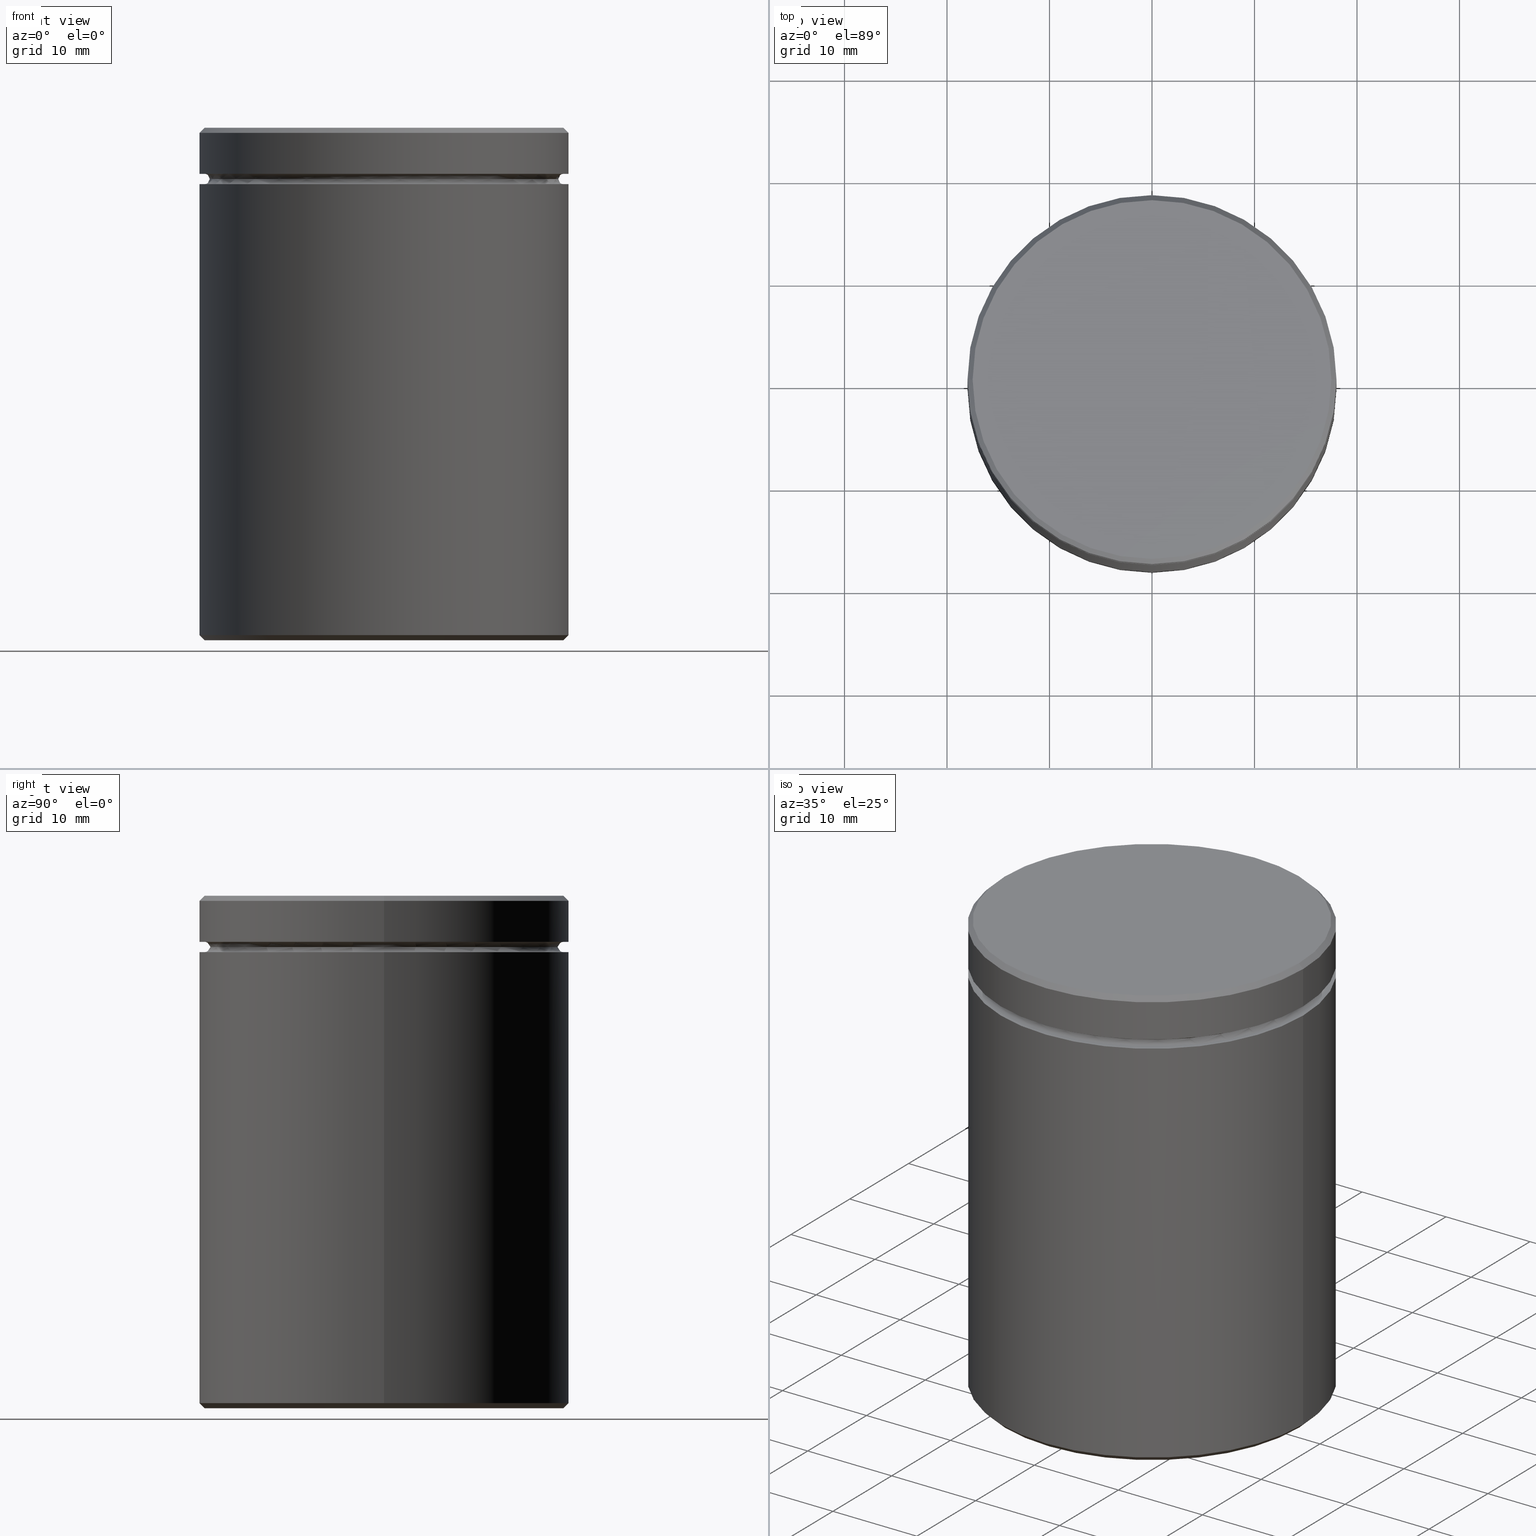
[diagram: canonical four-view strip — front | top / right | iso, engineering-drawing reading convention]
A machine part, canonical four-view strip (front | top / right | iso — engineering-drawing reading convention). The complete STEP part file that produces these views, byte-faithful:
ISO-10303-21;
HEADER;
FILE_DESCRIPTION (( 'STEP AP203' ),
    '1' );
FILE_NAME ('ba3d.STEP',
    '2024-01-02T17:57:16',
    ( '' ),
    ( '' ),
    'SwSTEP 2.0',
    'SolidWorks 2019',
    '' );
FILE_SCHEMA (( 'CONFIG_CONTROL_DESIGN' ));
ENDSEC;

DATA;
#1 = DIRECTION ( 'NONE',  ( -1.000000000000000000, 0.000000000000000000, -0.000000000000000000 ) ) ;
#2 = EDGE_CURVE ( 'NONE', #318, #506, #389, .T. ) ;
#3 = EDGE_LOOP ( 'NONE', ( #60, #65, #198, #148 ) ) ;
#4 = CARTESIAN_POINT ( 'NONE',  ( 0.000000000000000000, 0.000000000000000000, -5.500000000000000000 ) ) ;
#5 = DIRECTION ( 'NONE',  ( -0.000000000000000000, -0.000000000000000000, -1.000000000000000000 ) ) ;
#6 = EDGE_CURVE ( 'NONE', #547, #128, #319, .T. ) ;
#7 =( LENGTH_UNIT ( ) NAMED_UNIT ( * ) SI_UNIT ( .MILLI., .METRE. ) );
#8 = AXIS2_PLACEMENT_3D ( 'NONE', #293, #72, #218 ) ;
#9 = AXIS2_PLACEMENT_3D ( 'NONE', #413, #172, #55 ) ;
#10 = ORIENTED_EDGE ( 'NONE', *, *, #2, .F. ) ;
#11 = CARTESIAN_POINT ( 'NONE',  ( 0.000000000000000000, 0.000000000000000000, -5.500000000000000000 ) ) ;
#12 = ORIENTED_EDGE ( 'NONE', *, *, #212, .F. ) ;
#13 = DIRECTION ( 'NONE',  ( 1.000000000000000000, 0.000000000000000000, 0.000000000000000000 ) ) ;
#14 = APPROVAL ( #289, 'NEUR�EN�' ) ;
#15 = UNCERTAINTY_MEASURE_WITH_UNIT (LENGTH_MEASURE( 1.000000000000000082E-05 ), #7, 'distance_accuracy_value', 'NONE');
#16 = ORIENTED_EDGE ( 'NONE', *, *, #222, .T. ) ;
#17 = APPROVAL_DATE_TIME ( #61, #14 ) ;
#18 = AXIS2_PLACEMENT_3D ( 'NONE', #162, #302, #343 ) ;
#19 = AXIS2_PLACEMENT_3D ( 'NONE', #559, #161, #77 ) ;
#20 = ORIENTED_EDGE ( 'NONE', *, *, #22, .T. ) ;
#21 = ORIENTED_EDGE ( 'NONE', *, *, #258, .T. ) ;
#22 = EDGE_CURVE ( 'NONE', #57, #405, #340, .T. ) ;
#23 = APPLICATION_CONTEXT ( 'configuration controlled 3d designs of mechanical parts and assemblies' ) ;
#24 = SECURITY_CLASSIFICATION_LEVEL ( 'unclassified' ) ;
#25 = VERTEX_POINT ( 'NONE', #35 ) ;
#26 = CIRCLE ( 'NONE', #299, 18.00000000000000000 ) ;
#27 = AXIS2_PLACEMENT_3D ( 'NONE', #462, #149, #186 ) ;
#28 = ORIENTED_EDGE ( 'NONE', *, *, #6, .T. ) ;
#29 = CARTESIAN_POINT ( 'NONE',  ( 0.000000000000000000, 0.000000000000000000, -5.500000000000000000 ) ) ;
#30 = CARTESIAN_POINT ( 'NONE',  ( 12.50000000000000000, 1.530808498934191521E-15, -18.00000000000000355 ) ) ;
#31 = DIRECTION ( 'NONE',  ( 0.000000000000000000, 0.000000000000000000, -1.000000000000000000 ) ) ;
#32 = DIRECTION ( 'NONE',  ( -1.000000000000000000, 0.000000000000000000, 0.000000000000000000 ) ) ;
#33 = DIRECTION ( 'NONE',  ( -0.000000000000000000, -0.000000000000000000, 1.000000000000000000 ) ) ;
#34 = CC_DESIGN_SECURITY_CLASSIFICATION ( #264, ( #557 ) ) ;
#35 = CARTESIAN_POINT ( 'NONE',  ( 17.49999999999999645, 2.143131898507867854E-15, -4.500000000000000888 ) ) ;
#36 = ADVANCED_FACE ( 'NONE', ( #481 ), #408, .T. ) ;
#37 = CARTESIAN_POINT ( 'NONE',  ( 18.00000000000000000, 0.000000000000000000, -5.500000000000000000 ) ) ;
#38 = DIRECTION ( 'NONE',  ( -0.000000000000000000, -0.000000000000000000, 1.000000000000000000 ) ) ;
#39 = CARTESIAN_POINT ( 'NONE',  ( -18.00000000000000000, 2.204364238465235428E-15, 0.000000000000000000 ) ) ;
#40 = FACE_OUTER_BOUND ( 'NONE', #239, .T. ) ;
#41 = APPROVAL_PERSON_ORGANIZATION ( #138, #373, #470 ) ;
#42 = CARTESIAN_POINT ( 'NONE',  ( -17.50000000000000000, 2.173748068486551641E-15, -50.00000000000000000 ) ) ;
#43 = DIRECTION ( 'NONE',  ( 1.000000000000000000, 0.000000000000000000, 0.000000000000000000 ) ) ;
#44 = EDGE_LOOP ( 'NONE', ( #219, #242 ) ) ;
#45 = PLANE ( 'NONE',  #380 ) ;
#46 = CARTESIAN_POINT ( 'NONE',  ( -12.50000000000000000, 0.000000000000000000, -18.00000000000000355 ) ) ;
#47 = VERTEX_POINT ( 'NONE', #203 ) ;
#48 = DIRECTION ( 'NONE',  ( -0.000000000000000000, -0.000000000000000000, 1.000000000000000000 ) ) ;
#49 = EDGE_LOOP ( 'NONE', ( #381, #175, #227, #269 ) ) ;
#50 = DIRECTION ( 'NONE',  ( 1.000000000000000000, 0.000000000000000000, 0.000000000000000000 ) ) ;
#51 = VECTOR ( 'NONE', #5, 1000.000000000000000 ) ;
#52 = VECTOR ( 'NONE', #494, 1000.000000000000114 ) ;
#53 = AXIS2_PLACEMENT_3D ( 'NONE', #336, #63, #69 ) ;
#54 = CC_DESIGN_PERSON_AND_ORGANIZATION_ASSIGNMENT ( #334, #510, ( #442 ) ) ;
#55 = DIRECTION ( 'NONE',  ( 1.000000000000000000, 0.000000000000000000, 0.000000000000000000 ) ) ;
#56 = ORIENTED_EDGE ( 'NONE', *, *, #195, .T. ) ;
#57 = VERTEX_POINT ( 'NONE', #260 ) ;
#58 = MECHANICAL_CONTEXT ( 'NONE', #325, 'mechanical' ) ;
#59 = AXIS2_PLACEMENT_3D ( 'NONE', #533, #221, #489 ) ;
#60 = ORIENTED_EDGE ( 'NONE', *, *, #280, .F. ) ;
#61 = DATE_AND_TIME ( #502, #474 ) ;
#62 = ADVANCED_FACE ( 'NONE', ( #443, #257 ), #563, .T. ) ;
#63 = DIRECTION ( 'NONE',  ( 0.000000000000000000, 0.000000000000000000, -1.000000000000000000 ) ) ;
#64 = APPROVAL_STATUS ( 'not_yet_approved' ) ;
#65 = ORIENTED_EDGE ( 'NONE', *, *, #183, .T. ) ;
#66 = COORDINATED_UNIVERSAL_TIME_OFFSET ( 1, 0, .AHEAD. ) ;
#67 = AXIS2_PLACEMENT_3D ( 'NONE', #74, #476, #434 ) ;
#68 = AXIS2_PLACEMENT_3D ( 'NONE', #395, #566, #71 ) ;
#69 = DIRECTION ( 'NONE',  ( -1.000000000000000000, 0.000000000000000000, 0.000000000000000000 ) ) ;
#70 = EDGE_CURVE ( 'NONE', #503, #425, #178, .T. ) ;
#71 = DIRECTION ( 'NONE',  ( 0.000000000000000000, 0.000000000000000000, -1.000000000000000000 ) ) ;
#72 = DIRECTION ( 'NONE',  ( 0.000000000000000000, -0.000000000000000000, 1.000000000000000000 ) ) ;
#73 = DIRECTION ( 'NONE',  ( -1.000000000000000000, 0.000000000000000000, 0.000000000000000000 ) ) ;
#74 = CARTESIAN_POINT ( 'NONE',  ( 0.000000000000000000, 0.000000000000000000, -4.999999999999999112 ) ) ;
#75 = DIRECTION ( 'NONE',  ( 1.000000000000000000, 0.000000000000000000, 0.000000000000000000 ) ) ;
#76 = ADVANCED_FACE ( 'NONE', ( #386 ), #341, .T. ) ;
#77 = DIRECTION ( 'NONE',  ( -1.000000000000000000, 0.000000000000000000, 0.000000000000000000 ) ) ;
#78 = AXIS2_PLACEMENT_3D ( 'NONE', #120, #158, #441 ) ;
#79 = CIRCLE ( 'NONE', #146, 17.49999999999999645 ) ;
#80 = DIRECTION ( 'NONE',  ( -0.000000000000000000, -0.000000000000000000, 1.000000000000000000 ) ) ;
#81 = DIRECTION ( 'NONE',  ( -1.000000000000000000, 0.000000000000000000, 0.000000000000000000 ) ) ;
#82 = CYLINDRICAL_SURFACE ( 'NONE', #456, 12.50000000000000000 ) ;
#83 = DIRECTION ( 'NONE',  ( -1.000000000000000000, 0.000000000000000000, -0.000000000000000000 ) ) ;
#84 = DIRECTION ( 'NONE',  ( 1.000000000000000000, 0.000000000000000000, 0.000000000000000000 ) ) ;
#85 = CYLINDRICAL_SURFACE ( 'NONE', #564, 18.00000000000000000 ) ;
#86 = CIRCLE ( 'NONE', #482, 17.50000000000000000 ) ;
#87 = CARTESIAN_POINT ( 'NONE',  ( 18.00000000000000000, 0.000000000000000000, -49.50000000000000000 ) ) ;
#88 = FACE_OUTER_BOUND ( 'NONE', #529, .T. ) ;
#89 = ORIENTED_EDGE ( 'NONE', *, *, #515, .F. ) ;
#90 = DIRECTION ( 'NONE',  ( 0.000000000000000000, -0.000000000000000000, 1.000000000000000000 ) ) ;
#91 = DIRECTION ( 'NONE',  ( 0.000000000000000000, 0.000000000000000000, -1.000000000000000000 ) ) ;
#92 = ORIENTED_EDGE ( 'NONE', *, *, #453, .T. ) ;
#93 = ADVANCED_FACE ( 'NONE', ( #40 ), #147, .F. ) ;
#94 = VERTEX_POINT ( 'NONE', #517 ) ;
#95 = LINE ( 'NONE', #527, #52 ) ;
#96 = AXIS2_PLACEMENT_3D ( 'NONE', #555, #388, #75 ) ;
#97 = COORDINATED_UNIVERSAL_TIME_OFFSET ( 1, 0, .AHEAD. ) ;
#98 = DIRECTION ( 'NONE',  ( 0.000000000000000000, 0.000000000000000000, -1.000000000000000000 ) ) ;
#99 = PRODUCT_DEFINITION ( 'NEZN�M�', '', #557, #140 ) ;
#100 = ORIENTED_EDGE ( 'NONE', *, *, #410, .F. ) ;
#101 = AXIS2_PLACEMENT_3D ( 'NONE', #159, #479, #399 ) ;
#102 = EDGE_LOOP ( 'NONE', ( #92, #384, #179, #100 ) ) ;
#103 =( NAMED_UNIT ( * ) SI_UNIT ( $, .STERADIAN. ) SOLID_ANGLE_UNIT ( ) );
#104 = ORIENTED_EDGE ( 'NONE', *, *, #222, .F. ) ;
#105 = DATE_TIME_ROLE ( 'creation_date' ) ;
#106 = ORIENTED_EDGE ( 'NONE', *, *, #70, .F. ) ;
#107 = EDGE_CURVE ( 'NONE', #47, #503, #392, .T. ) ;
#108 = VECTOR ( 'NONE', #561, 1000.000000000000000 ) ;
#109 = CARTESIAN_POINT ( 'NONE',  ( 0.000000000000000000, 0.000000000000000000, 0.000000000000000000 ) ) ;
#110 = CARTESIAN_POINT ( 'NONE',  ( 0.000000000000000000, 0.000000000000000000, -5.000000000000000888 ) ) ;
#111 = DIRECTION ( 'NONE',  ( 0.000000000000000000, 0.000000000000000000, -1.000000000000000000 ) ) ;
#112 = DIRECTION ( 'NONE',  ( 1.224646799147353207E-16, 1.000000000000000000, 0.000000000000000000 ) ) ;
#113 = EDGE_CURVE ( 'NONE', #290, #265, #332, .T. ) ;
#114 = FACE_OUTER_BOUND ( 'NONE', #335, .T. ) ;
#115 = FACE_OUTER_BOUND ( 'NONE', #461, .T. ) ;
#116 = EDGE_CURVE ( 'NONE', #554, #310, #127, .T. ) ;
#117 = CARTESIAN_POINT ( 'NONE',  ( 18.00000000000000000, 0.000000000000000000, 0.000000000000000000 ) ) ;
#118 = TOROIDAL_SURFACE ( 'NONE', #78, 17.49999999999999645, 0.5000000000000000000 ) ;
#119 = CLOSED_SHELL ( 'NONE', ( #414, #93, #473, #76, #306, #300, #177, #62, #549, #133, #188, #180, #202, #383, #421, #36, #417, #543, #267 ) ) ;
#120 = CARTESIAN_POINT ( 'NONE',  ( 0.000000000000000000, 0.000000000000000000, -5.000000000000000888 ) ) ;
#121 = FACE_OUTER_BOUND ( 'NONE', #313, .T. ) ;
#122 = DIRECTION ( 'NONE',  ( -1.000000000000000000, 0.000000000000000000, 0.000000000000000000 ) ) ;
#123 = CARTESIAN_POINT ( 'NONE',  ( 0.000000000000000000, 18.00000000000000000, -4.500000000000000888 ) ) ;
#124 = CC_DESIGN_PERSON_AND_ORGANIZATION_ASSIGNMENT ( #194, #374, ( #557 ) ) ;
#125 = CARTESIAN_POINT ( 'NONE',  ( 0.000000000000000000, 0.000000000000000000, 0.000000000000000000 ) ) ;
#126 = DIRECTION ( 'NONE',  ( -1.000000000000000000, -1.224646799147349509E-16, 0.000000000000000000 ) ) ;
#127 = CIRCLE ( 'NONE', #67, 16.99999999999999645 ) ;
#128 = VERTEX_POINT ( 'NONE', #486 ) ;
#129 = CARTESIAN_POINT ( 'NONE',  ( 18.00000000000000000, 0.000000000000000000, -0.5000000000000108802 ) ) ;
#130 = CARTESIAN_POINT ( 'NONE',  ( 0.000000000000000000, 0.000000000000000000, -50.00000000000000000 ) ) ;
#131 = ORIENTED_EDGE ( 'NONE', *, *, #258, .F. ) ;
#132 = CARTESIAN_POINT ( 'NONE',  ( -17.49999999999999645, 0.000000000000000000, -4.500000000000000888 ) ) ;
#133 = ADVANCED_FACE ( 'NONE', ( #342 ), #295, .T. ) ;
#134 = ORIENTED_EDGE ( 'NONE', *, *, #271, .T. ) ;
#135 = CARTESIAN_POINT ( 'NONE',  ( 16.99999999999999645, 0.000000000000000000, -4.999999999999999112 ) ) ;
#136 = EDGE_LOOP ( 'NONE', ( #10, #134, #231, #279 ) ) ;
#137 = CIRCLE ( 'NONE', #396, 17.49999999999999645 ) ;
#138 = PERSON_AND_ORGANIZATION ( #536, #350 ) ;
#139 = AXIS2_PLACEMENT_3D ( 'NONE', #123, #263, #1 ) ;
#140 = DESIGN_CONTEXT ( 'detailed design', #23, 'design' ) ;
#141 = ORIENTED_EDGE ( 'NONE', *, *, #113, .T. ) ;
#142 = PERSON_AND_ORGANIZATION_ROLE ( 'classification_officer' ) ;
#143 = ORIENTED_EDGE ( 'NONE', *, *, #376, .T. ) ;
#144 = EDGE_LOOP ( 'NONE', ( #184, #471, #247, #193 ) ) ;
#145 = PERSON_AND_ORGANIZATION_ROLE ( 'creator' ) ;
#146 = AXIS2_PLACEMENT_3D ( 'NONE', #444, #497, #169 ) ;
#147 = TOROIDAL_SURFACE ( 'NONE', #101, 17.49999999999999645, 0.5000000000000000000 ) ;
#148 = ORIENTED_EDGE ( 'NONE', *, *, #445, .T. ) ;
#149 = DIRECTION ( 'NONE',  ( 0.000000000000000000, 0.000000000000000000, 1.000000000000000000 ) ) ;
#150 = EDGE_CURVE ( 'NONE', #57, #265, #207, .T. ) ;
#151 = ORIENTED_EDGE ( 'NONE', *, *, #376, .F. ) ;
#152 = EDGE_CURVE ( 'NONE', #554, #547, #472, .T. ) ;
#153 = ORIENTED_EDGE ( 'NONE', *, *, #365, .F. ) ;
#154 = CARTESIAN_POINT ( 'NONE',  ( 18.00000000000000000, 0.000000000000000000, -4.500000000000000888 ) ) ;
#155 = AXIS2_PLACEMENT_3D ( 'NONE', #160, #296, #73 ) ;
#156 = CARTESIAN_POINT ( 'NONE',  ( 0.000000000000000000, 0.000000000000000000, -5.500000000000000000 ) ) ;
#157 = CC_DESIGN_DATE_AND_TIME_ASSIGNMENT ( #323, #105, ( #99 ) ) ;
#158 = DIRECTION ( 'NONE',  ( 0.000000000000000000, 0.000000000000000000, -1.000000000000000000 ) ) ;
#159 = CARTESIAN_POINT ( 'NONE',  ( 0.000000000000000000, 0.000000000000000000, -4.999999999999999112 ) ) ;
#160 = CARTESIAN_POINT ( 'NONE',  ( 0.000000000000000000, 0.000000000000000000, -18.00000000000000355 ) ) ;
#161 = DIRECTION ( 'NONE',  ( -0.000000000000000000, -0.000000000000000000, 1.000000000000000000 ) ) ;
#162 = CARTESIAN_POINT ( 'NONE',  ( 0.000000000000000000, 0.000000000000000000, 0.000000000000000000 ) ) ;
#163 = DIRECTION ( 'NONE',  ( 1.000000000000000000, 0.000000000000000000, 0.000000000000000000 ) ) ;
#164 = CIRCLE ( 'NONE', #245, 17.50000000000000000 ) ;
#165 = APPROVAL_PERSON_ORGANIZATION ( #321, #249, #326 ) ;
#166 = FACE_OUTER_BOUND ( 'NONE', #544, .T. ) ;
#167 = EDGE_CURVE ( 'NONE', #509, #94, #164, .T. ) ;
#168 = DIRECTION ( 'NONE',  ( 0.000000000000000000, 0.000000000000000000, -1.000000000000000000 ) ) ;
#169 = DIRECTION ( 'NONE',  ( -1.000000000000000000, 0.000000000000000000, 0.000000000000000000 ) ) ;
#170 = DIRECTION ( 'NONE',  ( 1.000000000000000000, 0.000000000000000000, 0.000000000000000000 ) ) ;
#171 = VERTEX_POINT ( 'NONE', #512 ) ;
#172 = DIRECTION ( 'NONE',  ( -0.000000000000000000, -0.000000000000000000, 1.000000000000000000 ) ) ;
#173 = CARTESIAN_POINT ( 'NONE',  ( 0.000000000000000000, 0.000000000000000000, -4.500000000000000888 ) ) ;
#174 = AXIS2_PLACEMENT_3D ( 'NONE', #156, #524, #301 ) ;
#175 = ORIENTED_EDGE ( 'NONE', *, *, #116, .F. ) ;
#176 = CIRCLE ( 'NONE', #428, 18.00000000000000000 ) ;
#177 = ADVANCED_FACE ( 'NONE', ( #114 ), #521, .T. ) ;
#178 = CIRCLE ( 'NONE', #349, 18.00000000000000000 ) ;
#179 = ORIENTED_EDGE ( 'NONE', *, *, #240, .F. ) ;
#180 = ADVANCED_FACE ( 'NONE', ( #394, #121 ), #303, .T. ) ;
#181 = ORIENTED_EDGE ( 'NONE', *, *, #469, .T. ) ;
#182 = CARTESIAN_POINT ( 'NONE',  ( -18.00000000000000000, 2.204364238465235428E-15, -0.5000000000000108802 ) ) ;
#183 = EDGE_CURVE ( 'NONE', #171, #322, #26, .T. ) ;
#184 = ORIENTED_EDGE ( 'NONE', *, *, #271, .F. ) ;
#185 = CIRCLE ( 'NONE', #513, 12.50000000000000000 ) ;
#186 = DIRECTION ( 'NONE',  ( 1.000000000000000000, 0.000000000000000000, 0.000000000000000000 ) ) ;
#187 = CIRCLE ( 'NONE', #9, 18.00000000000000000 ) ;
#188 = ADVANCED_FACE ( 'NONE', ( #272, #401 ), #526, .T. ) ;
#189 = ORIENTED_EDGE ( 'NONE', *, *, #331, .F. ) ;
#190 = DATE_TIME_ROLE ( 'classification_date' ) ;
#191 = ORIENTED_EDGE ( 'NONE', *, *, #183, .F. ) ;
#192 = PERSON_AND_ORGANIZATION ( #536, #350 ) ;
#193 = ORIENTED_EDGE ( 'NONE', *, *, #243, .T. ) ;
#194 = PERSON_AND_ORGANIZATION ( #536, #350 ) ;
#195 = EDGE_CURVE ( 'NONE', #506, #318, #254, .T. ) ;
#196 = AXIS2_PLACEMENT_3D ( 'NONE', #556, #484, #255 ) ;
#197 = AXIS2_PLACEMENT_3D ( 'NONE', #4, #224, #540 ) ;
#198 = ORIENTED_EDGE ( 'NONE', *, *, #365, .T. ) ;
#199 = COORDINATED_UNIVERSAL_TIME_OFFSET ( 1, 0, .AHEAD. ) ;
#200 = ORIENTED_EDGE ( 'NONE', *, *, #107, .F. ) ;
#201 = FACE_OUTER_BOUND ( 'NONE', #102, .T. ) ;
#202 = ADVANCED_FACE ( 'NONE', ( #88 ), #85, .T. ) ;
#203 = CARTESIAN_POINT ( 'NONE',  ( -17.50000000000000000, 0.000000000000000000, 0.000000000000000000 ) ) ;
#204 = FACE_OUTER_BOUND ( 'NONE', #459, .T. ) ;
#205 = CIRCLE ( 'NONE', #328, 12.50000000000000000 ) ;
#206 = CONICAL_SURFACE ( 'NONE', #228, 18.00000000000000000, 0.7853981633974447263 ) ;
#207 = LINE ( 'NONE', #117, #108 ) ;
#208 = CARTESIAN_POINT ( 'NONE',  ( 12.50000000000000000, 1.530808498934191521E-15, -18.00000000000000355 ) ) ;
#209 = CARTESIAN_POINT ( 'NONE',  ( 18.00000000000000000, 0.000000000000000000, 0.000000000000000000 ) ) ;
#210 = DIRECTION ( 'NONE',  ( 1.000000000000000000, 0.000000000000000000, 0.000000000000000000 ) ) ;
#211 = DIRECTION ( 'NONE',  ( -1.000000000000000000, 1.224646799147349509E-16, 0.000000000000000000 ) ) ;
#212 = EDGE_CURVE ( 'NONE', #554, #25, #522, .T. ) ;
#213 = AXIS2_PLACEMENT_3D ( 'NONE', #109, #38, #210 ) ;
#214 = DIRECTION ( 'NONE',  ( -0.7071067811865376918, 0.000000000000000000, -0.7071067811865574537 ) ) ;
#215 = CONICAL_SURFACE ( 'NONE', #96, 18.00000000000000000, 0.7853981633974447263 ) ;
#216 = AXIS2_PLACEMENT_3D ( 'NONE', #400, #266, #460 ) ;
#217 = CARTESIAN_POINT ( 'NONE',  ( 0.000000000000000000, 0.000000000000000000, -49.50000000000000000 ) ) ;
#218 = DIRECTION ( 'NONE',  ( 1.000000000000000000, 0.000000000000000000, 0.000000000000000000 ) ) ;
#219 = ORIENTED_EDGE ( 'NONE', *, *, #478, .T. ) ;
#220 = DIRECTION ( 'NONE',  ( -1.000000000000000000, 0.000000000000000000, -0.000000000000000000 ) ) ;
#221 = DIRECTION ( 'NONE',  ( 0.000000000000000000, 0.000000000000000000, -1.000000000000000000 ) ) ;
#222 = EDGE_CURVE ( 'NONE', #47, #363, #532, .T. ) ;
#223 = ORIENTED_EDGE ( 'NONE', *, *, #167, .F. ) ;
#224 = DIRECTION ( 'NONE',  ( 0.000000000000000000, 0.000000000000000000, -1.000000000000000000 ) ) ;
#225 = ADVANCED_BREP_SHAPE_REPRESENTATION ( 'ba3d', ( #277, #27 ), #565 ) ;
#226 = AXIS2_PLACEMENT_3D ( 'NONE', #390, #344, #168 ) ;
#227 = ORIENTED_EDGE ( 'NONE', *, *, #152, .T. ) ;
#228 = AXIS2_PLACEMENT_3D ( 'NONE', #230, #569, #13 ) ;
#229 = DIRECTION ( 'NONE',  ( -0.000000000000000000, -0.000000000000000000, 1.000000000000000000 ) ) ;
#230 = CARTESIAN_POINT ( 'NONE',  ( 0.000000000000000000, 0.000000000000000000, -49.50000000000000000 ) ) ;
#231 = ORIENTED_EDGE ( 'NONE', *, *, #331, .T. ) ;
#232 = APPROVAL_STATUS ( 'not_yet_approved' ) ;
#233 = EDGE_CURVE ( 'NONE', #506, #499, #450, .T. ) ;
#234 = ORIENTED_EDGE ( 'NONE', *, *, #317, .T. ) ;
#235 = VECTOR ( 'NONE', #439, 1000.000000000000000 ) ;
#236 = ORIENTED_EDGE ( 'NONE', *, *, #113, .F. ) ;
#237 = PRODUCT_DEFINITION_SHAPE ( 'NONE', 'NONE',  #99 ) ;
#238 = APPLICATION_PROTOCOL_DEFINITION ( 'international standard', 'config_control_design', 1994, #325 ) ;
#239 = EDGE_LOOP ( 'NONE', ( #409, #327, #287, #493 ) ) ;
#240 = EDGE_CURVE ( 'NONE', #466, #25, #137, .T. ) ;
#241 = APPLICATION_PROTOCOL_DEFINITION ( 'international standard', 'config_control_design', 1994, #23 ) ;
#242 = ORIENTED_EDGE ( 'NONE', *, *, #167, .T. ) ;
#243 = EDGE_CURVE ( 'NONE', #499, #356, #205, .T. ) ;
#244 = CALENDAR_DATE ( 2024, 2, 1 ) ;
#245 = AXIS2_PLACEMENT_3D ( 'NONE', #351, #519, #81 ) ;
#246 = CC_DESIGN_APPROVAL ( #249, ( #99 ) ) ;
#247 = ORIENTED_EDGE ( 'NONE', *, *, #233, .T. ) ;
#248 = CYLINDRICAL_SURFACE ( 'NONE', #446, 18.00000000000000000 ) ;
#249 = APPROVAL ( #232, 'NEUR�EN�' ) ;
#250 = DIRECTION ( 'NONE',  ( -1.000000000000000000, 0.000000000000000000, 0.000000000000000000 ) ) ;
#251 = LINE ( 'NONE', #208, #284 ) ;
#252 = CARTESIAN_POINT ( 'NONE',  ( 0.000000000000000000, 0.000000000000000000, 0.000000000000000000 ) ) ;
#253 = FACE_OUTER_BOUND ( 'NONE', #283, .T. ) ;
#254 = CIRCLE ( 'NONE', #59, 12.50000000000000000 ) ;
#255 = DIRECTION ( 'NONE',  ( -1.000000000000000000, 0.000000000000000000, 0.000000000000000000 ) ) ;
#256 = DIRECTION ( 'NONE',  ( 0.000000000000000000, 0.000000000000000000, -1.000000000000000000 ) ) ;
#257 = FACE_BOUND ( 'NONE', #333, .T. ) ;
#258 = EDGE_CURVE ( 'NONE', #363, #425, #353, .T. ) ;
#259 = CARTESIAN_POINT ( 'NONE',  ( -18.00000000000000000, 2.204364238465235428E-15, -49.50000000000000000 ) ) ;
#260 = CARTESIAN_POINT ( 'NONE',  ( 18.00000000000000000, 0.000000000000000000, -49.50000000000000000 ) ) ;
#261 = DIRECTION ( 'NONE',  ( 0.000000000000000000, 0.000000000000000000, -1.000000000000000000 ) ) ;
#262 = AXIS2_PLACEMENT_3D ( 'NONE', #520, #112, #211 ) ;
#263 = DIRECTION ( 'NONE',  ( 0.000000000000000000, 0.000000000000000000, -1.000000000000000000 ) ) ;
#264 = SECURITY_CLASSIFICATION ( '', '', #24 ) ;
#265 = VERTEX_POINT ( 'NONE', #37 ) ;
#266 = DIRECTION ( 'NONE',  ( -0.000000000000000000, -0.000000000000000000, 1.000000000000000000 ) ) ;
#267 = ADVANCED_FACE ( 'NONE', ( #115 ), #118, .F. ) ;
#268 = DIRECTION ( 'NONE',  ( 1.000000000000000000, 0.000000000000000000, 0.000000000000000000 ) ) ;
#269 = ORIENTED_EDGE ( 'NONE', *, *, #567, .F. ) ;
#270 = DIRECTION ( 'NONE',  ( 0.7071067811865451302, 0.000000000000000000, 0.7071067811865500152 ) ) ;
#271 = EDGE_CURVE ( 'NONE', #318, #356, #251, .T. ) ;
#272 = FACE_BOUND ( 'NONE', #377, .T. ) ;
#273 = EDGE_LOOP ( 'NONE', ( #151, #21, #106, #200 ) ) ;
#274 = DIRECTION ( 'NONE',  ( 1.000000000000000000, 0.000000000000000000, 0.000000000000000000 ) ) ;
#275 = AXIS2_PLACEMENT_3D ( 'NONE', #355, #528, #126 ) ;
#276 = ORIENTED_EDGE ( 'NONE', *, *, #445, .F. ) ;
#277 = MANIFOLD_SOLID_BREP ( 'Zaoblit1', #119 ) ;
#278 = FACE_OUTER_BOUND ( 'NONE', #49, .T. ) ;
#279 = ORIENTED_EDGE ( 'NONE', *, *, #233, .F. ) ;
#280 = EDGE_CURVE ( 'NONE', #171, #503, #345, .T. ) ;
#281 = DATE_AND_TIME ( #244, #369 ) ;
#282 = DIRECTION ( 'NONE',  ( 1.000000000000000000, 0.000000000000000000, 0.000000000000000000 ) ) ;
#283 = EDGE_LOOP ( 'NONE', ( #56, #464 ) ) ;
#284 = VECTOR ( 'NONE', #480, 1000.000000000000000 ) ;
#285 = CC_DESIGN_APPROVAL ( #14, ( #557 ) ) ;
#286 = EDGE_CURVE ( 'NONE', #310, #128, #406, .T. ) ;
#287 = ORIENTED_EDGE ( 'NONE', *, *, #6, .F. ) ;
#288 = EDGE_LOOP ( 'NONE', ( #28, #375 ) ) ;
#289 = APPROVAL_STATUS ( 'not_yet_approved' ) ;
#290 = VERTEX_POINT ( 'NONE', #523 ) ;
#291 = PRODUCT_RELATED_PRODUCT_CATEGORY ( 'detail', '', ( #442 ) ) ;
#292 = LOCAL_TIME ( 18, 57, 16.00000000000000000, #97 ) ;
#293 = CARTESIAN_POINT ( 'NONE',  ( 0.000000000000000000, 16.99999999999999645, -5.500000000000000000 ) ) ;
#294 = DIRECTION ( 'NONE',  ( -0.000000000000000000, -0.000000000000000000, 1.000000000000000000 ) ) ;
#295 = CYLINDRICAL_SURFACE ( 'NONE', #397, 18.00000000000000000 ) ;
#296 = DIRECTION ( 'NONE',  ( -0.000000000000000000, -0.000000000000000000, -1.000000000000000000 ) ) ;
#297 = CARTESIAN_POINT ( 'NONE',  ( 0.000000000000000000, 18.00000000000000000, -50.00000000000000000 ) ) ;
#298 = FACE_OUTER_BOUND ( 'NONE', #136, .T. ) ;
#299 = AXIS2_PLACEMENT_3D ( 'NONE', #305, #312, #43 ) ;
#300 = ADVANCED_FACE ( 'NONE', ( #166 ), #248, .T. ) ;
#301 = DIRECTION ( 'NONE',  ( 1.000000000000000000, 0.000000000000000000, 0.000000000000000000 ) ) ;
#302 = DIRECTION ( 'NONE',  ( -0.000000000000000000, -0.000000000000000000, 1.000000000000000000 ) ) ;
#303 = PLANE ( 'NONE',  #8 ) ;
#304 = DIRECTION ( 'NONE',  ( -1.000000000000000000, 0.000000000000000000, 0.000000000000000000 ) ) ;
#305 = CARTESIAN_POINT ( 'NONE',  ( 0.000000000000000000, 0.000000000000000000, -4.500000000000000888 ) ) ;
#306 = ADVANCED_FACE ( 'NONE', ( #298 ), #82, .F. ) ;
#307 = CIRCLE ( 'NONE', #68, 0.5000000000000004441 ) ;
#308 = CARTESIAN_POINT ( 'NONE',  ( 0.000000000000000000, 0.000000000000000000, 0.000000000000000000 ) ) ;
#309 = CC_DESIGN_APPROVAL ( #373, ( #264 ) ) ;
#310 = VERTEX_POINT ( 'NONE', #516 ) ;
#311 = CARTESIAN_POINT ( 'NONE',  ( -12.50000000000000000, 0.000000000000000000, -50.00000000000000000 ) ) ;
#312 = DIRECTION ( 'NONE',  ( -0.000000000000000000, -0.000000000000000000, 1.000000000000000000 ) ) ;
#313 = EDGE_LOOP ( 'NONE', ( #511, #141 ) ) ;
#314 =( NAMED_UNIT ( * ) PLANE_ANGLE_UNIT ( ) SI_UNIT ( $, .RADIAN. ) );
#315 = ORIENTED_EDGE ( 'NONE', *, *, #530, .F. ) ;
#316 = CARTESIAN_POINT ( 'NONE',  ( 0.000000000000000000, 0.000000000000000000, -0.5000000000000108802 ) ) ;
#317 = EDGE_CURVE ( 'NONE', #405, #290, #560, .T. ) ;
#318 = VERTEX_POINT ( 'NONE', #30 ) ;
#319 = CIRCLE ( 'NONE', #458, 17.49999999999999645 ) ;
#320 = APPROVAL_PERSON_ORGANIZATION ( #552, #14, #423 ) ;
#321 = PERSON_AND_ORGANIZATION ( #536, #350 ) ;
#322 = VERTEX_POINT ( 'NONE', #154 ) ;
#323 = DATE_AND_TIME ( #427, #514 ) ;
#324 = ORIENTED_EDGE ( 'NONE', *, *, #469, .F. ) ;
#325 = APPLICATION_CONTEXT ( 'configuration controlled 3d designs of mechanical parts and assemblies' ) ;
#326 = APPROVAL_ROLE ( '' ) ;
#327 = ORIENTED_EDGE ( 'NONE', *, *, #286, .T. ) ;
#328 = AXIS2_PLACEMENT_3D ( 'NONE', #130, #91, #452 ) ;
#329 = DATE_AND_TIME ( #467, #292 ) ;
#330 = AXIS2_PLACEMENT_3D ( 'NONE', #110, #477, #32 ) ;
#331 = EDGE_CURVE ( 'NONE', #356, #499, #185, .T. ) ;
#332 = CIRCLE ( 'NONE', #174, 18.00000000000000000 ) ;
#333 = EDGE_LOOP ( 'NONE', ( #402, #189 ) ) ;
#334 = PERSON_AND_ORGANIZATION ( #536, #350 ) ;
#335 = EDGE_LOOP ( 'NONE', ( #181, #537, #534, #153 ) ) ;
#336 = CARTESIAN_POINT ( 'NONE',  ( 0.000000000000000000, 0.000000000000000000, -18.00000000000000355 ) ) ;
#337 = CC_DESIGN_PERSON_AND_ORGANIZATION_ASSIGNMENT ( #420, #145, ( #99 ) ) ;
#338 = TOROIDAL_SURFACE ( 'NONE', #330, 17.49999999999999645, 0.5000000000000000000 ) ;
#339 = CARTESIAN_POINT ( 'NONE',  ( 12.50000000000000000, 1.530808498934191521E-15, -50.00000000000000000 ) ) ;
#340 = CIRCLE ( 'NONE', #19, 18.00000000000000000 ) ;
#341 = CONICAL_SURFACE ( 'NONE', #362, 17.50000000000000000, 0.7853981633974344012 ) ;
#342 = FACE_OUTER_BOUND ( 'NONE', #3, .T. ) ;
#343 = DIRECTION ( 'NONE',  ( 1.000000000000000000, 0.000000000000000000, 0.000000000000000000 ) ) ;
#344 = DIRECTION ( 'NONE',  ( 0.000000000000000000, -1.000000000000000000, 0.000000000000000000 ) ) ;
#345 = LINE ( 'NONE', #39, #541 ) ;
#346 = CARTESIAN_POINT ( 'NONE',  ( 0.000000000000000000, 0.000000000000000000, 0.000000000000000000 ) ) ;
#347 = CYLINDRICAL_SURFACE ( 'NONE', #155, 12.50000000000000000 ) ;
#348 = CIRCLE ( 'NONE', #18, 17.50000000000000000 ) ;
#349 = AXIS2_PLACEMENT_3D ( 'NONE', #437, #31, #440 ) ;
#350 = ORGANIZATION ( 'NEUR�EN�', 'NEUR�EN�', '' ) ;
#351 = CARTESIAN_POINT ( 'NONE',  ( 0.000000000000000000, 0.000000000000000000, -50.00000000000000000 ) ) ;
#352 = DIRECTION ( 'NONE',  ( -1.000000000000000000, 0.000000000000000000, 0.000000000000000000 ) ) ;
#353 = LINE ( 'NONE', #525, #368 ) ;
#354 = FACE_OUTER_BOUND ( 'NONE', #468, .T. ) ;
#355 = CARTESIAN_POINT ( 'NONE',  ( 17.49999999999999645, 2.143131898507867854E-15, -5.000000000000000888 ) ) ;
#356 = VERTEX_POINT ( 'NONE', #339 ) ;
#357 = PLANE ( 'NONE',  #398 ) ;
#358 = DIRECTION ( 'NONE',  ( -0.000000000000000000, -0.000000000000000000, 1.000000000000000000 ) ) ;
#359 = AXIS2_PLACEMENT_3D ( 'NONE', #11, #411, #274 ) ;
#360 = AXIS2_PLACEMENT_3D ( 'NONE', #297, #432, #83 ) ;
#361 = ORIENTED_EDGE ( 'NONE', *, *, #150, .F. ) ;
#362 = AXIS2_PLACEMENT_3D ( 'NONE', #346, #111, #250 ) ;
#363 = VERTEX_POINT ( 'NONE', #393 ) ;
#364 = CARTESIAN_POINT ( 'NONE',  ( 0.000000000000000000, 0.000000000000000000, -4.999999999999999112 ) ) ;
#365 = EDGE_CURVE ( 'NONE', #322, #425, #475, .T. ) ;
#366 = EDGE_LOOP ( 'NONE', ( #16, #143 ) ) ;
#367 = FACE_OUTER_BOUND ( 'NONE', #366, .T. ) ;
#368 = VECTOR ( 'NONE', #518, 999.9999999999998863 ) ;
#369 = LOCAL_TIME ( 18, 57, 16.00000000000000000, #379 ) ;
#370 = ORIENTED_EDGE ( 'NONE', *, *, #478, .F. ) ;
#371 = APPROVAL_DATE_TIME ( #281, #373 ) ;
#372 = ORIENTED_EDGE ( 'NONE', *, *, #438, .F. ) ;
#373 = APPROVAL ( #64, 'NEUR�EN�' ) ;
#374 = PERSON_AND_ORGANIZATION_ROLE ( 'design_supplier' ) ;
#375 = ORIENTED_EDGE ( 'NONE', *, *, #567, .T. ) ;
#376 = EDGE_CURVE ( 'NONE', #363, #47, #348, .T. ) ;
#377 = EDGE_LOOP ( 'NONE', ( #412, #465 ) ) ;
#378 = VECTOR ( 'NONE', #80, 1000.000000000000000 ) ;
#379 = COORDINATED_UNIVERSAL_TIME_OFFSET ( 1, 0, .AHEAD. ) ;
#380 = AXIS2_PLACEMENT_3D ( 'NONE', #125, #90, #84 ) ;
#381 = ORIENTED_EDGE ( 'NONE', *, *, #286, .F. ) ;
#382 = PERSON_AND_ORGANIZATION ( #536, #350 ) ;
#383 = ADVANCED_FACE ( 'NONE', ( #562 ), #347, .F. ) ;
#384 = ORIENTED_EDGE ( 'NONE', *, *, #212, .T. ) ;
#385 = CARTESIAN_POINT ( 'NONE',  ( -18.00000000000000000, 2.204364238465235428E-15, 0.000000000000000000 ) ) ;
#386 = FACE_OUTER_BOUND ( 'NONE', #273, .T. ) ;
#387 = CIRCLE ( 'NONE', #359, 18.00000000000000000 ) ;
#388 = DIRECTION ( 'NONE',  ( -0.000000000000000000, -0.000000000000000000, 1.000000000000000000 ) ) ;
#389 = CIRCLE ( 'NONE', #53, 12.50000000000000000 ) ;
#390 = CARTESIAN_POINT ( 'NONE',  ( 17.49999999999999645, 0.000000000000000000, -4.999999999999999112 ) ) ;
#391 = CARTESIAN_POINT ( 'NONE',  ( 0.000000000000000000, 0.000000000000000000, -18.00000000000000355 ) ) ;
#392 = LINE ( 'NONE', #568, #436 ) ;
#393 = CARTESIAN_POINT ( 'NONE',  ( 17.50000000000000000, 2.173748068486551641E-15, 0.000000000000000000 ) ) ;
#394 = FACE_BOUND ( 'NONE', #288, .T. ) ;
#395 = CARTESIAN_POINT ( 'NONE',  ( -17.49999999999999645, 0.000000000000000000, -5.000000000000000888 ) ) ;
#396 = AXIS2_PLACEMENT_3D ( 'NONE', #173, #358, #495 ) ;
#397 = AXIS2_PLACEMENT_3D ( 'NONE', #252, #33, #163 ) ;
#398 = AXIS2_PLACEMENT_3D ( 'NONE', #449, #261, #220 ) ;
#399 = DIRECTION ( 'NONE',  ( 1.000000000000000000, 0.000000000000000000, 0.000000000000000000 ) ) ;
#400 = CARTESIAN_POINT ( 'NONE',  ( 0.000000000000000000, 0.000000000000000000, -4.999999999999999112 ) ) ;
#401 = FACE_OUTER_BOUND ( 'NONE', #539, .T. ) ;
#402 = ORIENTED_EDGE ( 'NONE', *, *, #243, .F. ) ;
#403 = CARTESIAN_POINT ( 'NONE',  ( 0.000000000000000000, 0.000000000000000000, -50.00000000000000000 ) ) ;
#404 = DIRECTION ( 'NONE',  ( -0.000000000000000000, -0.000000000000000000, 1.000000000000000000 ) ) ;
#405 = VERTEX_POINT ( 'NONE', #259 ) ;
#406 = CIRCLE ( 'NONE', #262, 0.5000000000000004441 ) ;
#407 = AXIS2_PLACEMENT_3D ( 'NONE', #316, #455, #50 ) ;
#408 = CONICAL_SURFACE ( 'NONE', #196, 17.50000000000000000, 0.7853981633974344012 ) ;
#409 = ORIENTED_EDGE ( 'NONE', *, *, #453, .F. ) ;
#410 = EDGE_CURVE ( 'NONE', #310, #466, #307, .T. ) ;
#411 = DIRECTION ( 'NONE',  ( -0.000000000000000000, -0.000000000000000000, 1.000000000000000000 ) ) ;
#412 = ORIENTED_EDGE ( 'NONE', *, *, #240, .T. ) ;
#413 = CARTESIAN_POINT ( 'NONE',  ( 0.000000000000000000, 0.000000000000000000, -4.500000000000000888 ) ) ;
#414 = ADVANCED_FACE ( 'NONE', ( #201 ), #338, .F. ) ;
#415 = ORIENTED_EDGE ( 'NONE', *, *, #508, .T. ) ;
#416 = APPROVAL_DATE_TIME ( #504, #249 ) ;
#417 = ADVANCED_FACE ( 'NONE', ( #204 ), #215, .T. ) ;
#418 = CIRCLE ( 'NONE', #197, 17.49999999999999645 ) ;
#419 = ORIENTED_EDGE ( 'NONE', *, *, #429, .F. ) ;
#420 = PERSON_AND_ORGANIZATION ( #536, #350 ) ;
#421 = ADVANCED_FACE ( 'NONE', ( #253 ), #357, .T. ) ;
#422 = EDGE_LOOP ( 'NONE', ( #131, #104, #551, #276 ) ) ;
#423 = APPROVAL_ROLE ( '' ) ;
#424 = ORIENTED_EDGE ( 'NONE', *, *, #438, .T. ) ;
#425 = VERTEX_POINT ( 'NONE', #129 ) ;
#426 = AXIS2_PLACEMENT_3D ( 'NONE', #308, #492, #268 ) ;
#427 = CALENDAR_DATE ( 2024, 2, 1 ) ;
#428 = AXIS2_PLACEMENT_3D ( 'NONE', #217, #229, #304 ) ;
#429 = EDGE_CURVE ( 'NONE', #94, #57, #535, .T. ) ;
#430 = ORIENTED_EDGE ( 'NONE', *, *, #508, .F. ) ;
#431 = CARTESIAN_POINT ( 'NONE',  ( 0.000000000000000000, 0.000000000000000000, 0.000000000000000000 ) ) ;
#432 = DIRECTION ( 'NONE',  ( 0.000000000000000000, 0.000000000000000000, -1.000000000000000000 ) ) ;
#433 = CC_DESIGN_PERSON_AND_ORGANIZATION_ASSIGNMENT ( #192, #142, ( #264 ) ) ;
#434 = DIRECTION ( 'NONE',  ( 1.000000000000000000, 0.000000000000000000, 0.000000000000000000 ) ) ;
#435 = DIRECTION ( 'NONE',  ( -0.000000000000000000, -0.000000000000000000, 1.000000000000000000 ) ) ;
#436 = VECTOR ( 'NONE', #214, 999.9999999999998863 ) ;
#437 = CARTESIAN_POINT ( 'NONE',  ( 0.000000000000000000, 0.000000000000000000, -0.5000000000000108802 ) ) ;
#438 = EDGE_CURVE ( 'NONE', #405, #57, #176, .T. ) ;
#439 = DIRECTION ( 'NONE',  ( -0.000000000000000000, -0.000000000000000000, 1.000000000000000000 ) ) ;
#440 = DIRECTION ( 'NONE',  ( 1.000000000000000000, 0.000000000000000000, 0.000000000000000000 ) ) ;
#441 = DIRECTION ( 'NONE',  ( -1.000000000000000000, 0.000000000000000000, 0.000000000000000000 ) ) ;
#442 = PRODUCT ( 'ba3d', 'ba3d', '', ( #58 ) ) ;
#443 = FACE_OUTER_BOUND ( 'NONE', #44, .T. ) ;
#444 = CARTESIAN_POINT ( 'NONE',  ( 0.000000000000000000, 0.000000000000000000, -4.500000000000000888 ) ) ;
#445 = EDGE_CURVE ( 'NONE', #425, #503, #505, .T. ) ;
#446 = AXIS2_PLACEMENT_3D ( 'NONE', #431, #294, #558 ) ;
#447 = CARTESIAN_POINT ( 'NONE',  ( 0.000000000000000000, 0.000000000000000000, 0.000000000000000000 ) ) ;
#448 = ORIENTED_EDGE ( 'NONE', *, *, #116, .T. ) ;
#449 = CARTESIAN_POINT ( 'NONE',  ( 0.000000000000000000, 0.000000000000000000, -18.00000000000000355 ) ) ;
#450 = LINE ( 'NONE', #46, #51 ) ;
#451 = CARTESIAN_POINT ( 'NONE',  ( -12.50000000000000000, 0.000000000000000000, -18.00000000000000355 ) ) ;
#452 = DIRECTION ( 'NONE',  ( -1.000000000000000000, 0.000000000000000000, 0.000000000000000000 ) ) ;
#453 = EDGE_CURVE ( 'NONE', #310, #554, #542, .T. ) ;
#454 = ORIENTED_EDGE ( 'NONE', *, *, #22, .F. ) ;
#455 = DIRECTION ( 'NONE',  ( 0.000000000000000000, 0.000000000000000000, -1.000000000000000000 ) ) ;
#456 = AXIS2_PLACEMENT_3D ( 'NONE', #391, #483, #122 ) ;
#457 = VECTOR ( 'NONE', #270, 1000.000000000000114 ) ;
#458 = AXIS2_PLACEMENT_3D ( 'NONE', #29, #98, #282 ) ;
#459 = EDGE_LOOP ( 'NONE', ( #430, #370, #501, #372 ) ) ;
#460 = DIRECTION ( 'NONE',  ( 1.000000000000000000, 0.000000000000000000, 0.000000000000000000 ) ) ;
#461 = EDGE_LOOP ( 'NONE', ( #12, #448, #553, #315 ) ) ;
#462 = CARTESIAN_POINT ( 'NONE',  ( 0.000000000000000000, 0.000000000000000000, 0.000000000000000000 ) ) ;
#463 = CC_DESIGN_DATE_AND_TIME_ASSIGNMENT ( #329, #190, ( #264 ) ) ;
#464 = ORIENTED_EDGE ( 'NONE', *, *, #2, .T. ) ;
#465 = ORIENTED_EDGE ( 'NONE', *, *, #530, .T. ) ;
#466 = VERTEX_POINT ( 'NONE', #132 ) ;
#467 = CALENDAR_DATE ( 2024, 2, 1 ) ;
#468 = EDGE_LOOP ( 'NONE', ( #223, #415, #454, #419 ) ) ;
#469 = EDGE_CURVE ( 'NONE', #322, #171, #187, .T. ) ;
#470 = APPROVAL_ROLE ( '' ) ;
#471 = ORIENTED_EDGE ( 'NONE', *, *, #195, .F. ) ;
#472 = CIRCLE ( 'NONE', #226, 0.5000000000000004441 ) ;
#473 = ADVANCED_FACE ( 'NONE', ( #354 ), #206, .T. ) ;
#474 = LOCAL_TIME ( 18, 57, 16.00000000000000000, #66 ) ;
#475 = LINE ( 'NONE', #209, #378 ) ;
#476 = DIRECTION ( 'NONE',  ( -0.000000000000000000, -0.000000000000000000, 1.000000000000000000 ) ) ;
#477 = DIRECTION ( 'NONE',  ( 0.000000000000000000, 0.000000000000000000, -1.000000000000000000 ) ) ;
#478 = EDGE_CURVE ( 'NONE', #94, #509, #86, .T. ) ;
#479 = DIRECTION ( 'NONE',  ( -0.000000000000000000, -0.000000000000000000, 1.000000000000000000 ) ) ;
#480 = DIRECTION ( 'NONE',  ( -0.000000000000000000, -0.000000000000000000, -1.000000000000000000 ) ) ;
#481 = FACE_OUTER_BOUND ( 'NONE', #422, .T. ) ;
#482 = AXIS2_PLACEMENT_3D ( 'NONE', #403, #531, #538 ) ;
#483 = DIRECTION ( 'NONE',  ( -0.000000000000000000, -0.000000000000000000, -1.000000000000000000 ) ) ;
#484 = DIRECTION ( 'NONE',  ( 0.000000000000000000, 0.000000000000000000, -1.000000000000000000 ) ) ;
#485 = CARTESIAN_POINT ( 'NONE',  ( 0.000000000000000000, 0.000000000000000000, -50.00000000000000000 ) ) ;
#486 = CARTESIAN_POINT ( 'NONE',  ( -17.49999999999999645, 2.143131898507867854E-15, -5.500000000000000000 ) ) ;
#487 = CC_DESIGN_PERSON_AND_ORGANIZATION_ASSIGNMENT ( #382, #500, ( #557 ) ) ;
#488 = DIRECTION ( 'NONE',  ( 1.000000000000000000, 0.000000000000000000, 0.000000000000000000 ) ) ;
#489 = DIRECTION ( 'NONE',  ( -1.000000000000000000, 0.000000000000000000, 0.000000000000000000 ) ) ;
#490 = CARTESIAN_POINT ( 'NONE',  ( 17.49999999999999645, 0.000000000000000000, -5.500000000000000000 ) ) ;
#491 = AXIS2_PLACEMENT_3D ( 'NONE', #364, #48, #488 ) ;
#492 = DIRECTION ( 'NONE',  ( -0.000000000000000000, -0.000000000000000000, 1.000000000000000000 ) ) ;
#493 = ORIENTED_EDGE ( 'NONE', *, *, #152, .F. ) ;
#494 = DIRECTION ( 'NONE',  ( -0.7071067811865451302, 8.659560562354903276E-17, 0.7071067811865500152 ) ) ;
#495 = DIRECTION ( 'NONE',  ( -1.000000000000000000, 0.000000000000000000, 0.000000000000000000 ) ) ;
#496 = ORIENTED_EDGE ( 'NONE', *, *, #150, .T. ) ;
#497 = DIRECTION ( 'NONE',  ( -0.000000000000000000, -0.000000000000000000, 1.000000000000000000 ) ) ;
#498 = LOCAL_TIME ( 18, 57, 16.00000000000000000, #199 ) ;
#499 = VERTEX_POINT ( 'NONE', #311 ) ;
#500 = PERSON_AND_ORGANIZATION_ROLE ( 'creator' ) ;
#501 = ORIENTED_EDGE ( 'NONE', *, *, #429, .T. ) ;
#502 = CALENDAR_DATE ( 2024, 2, 1 ) ;
#503 = VERTEX_POINT ( 'NONE', #182 ) ;
#504 = DATE_AND_TIME ( #548, #498 ) ;
#505 = CIRCLE ( 'NONE', #407, 18.00000000000000000 ) ;
#506 = VERTEX_POINT ( 'NONE', #451 ) ;
#507 = COORDINATED_UNIVERSAL_TIME_OFFSET ( 1, 0, .AHEAD. ) ;
#508 = EDGE_CURVE ( 'NONE', #509, #405, #95, .T. ) ;
#509 = VERTEX_POINT ( 'NONE', #42 ) ;
#510 = PERSON_AND_ORGANIZATION_ROLE ( 'design_owner' ) ;
#511 = ORIENTED_EDGE ( 'NONE', *, *, #515, .T. ) ;
#512 = CARTESIAN_POINT ( 'NONE',  ( -18.00000000000000000, 2.204364238465235428E-15, -4.500000000000000888 ) ) ;
#513 = AXIS2_PLACEMENT_3D ( 'NONE', #485, #256, #352 ) ;
#514 = LOCAL_TIME ( 18, 57, 16.00000000000000000, #507 ) ;
#515 = EDGE_CURVE ( 'NONE', #265, #290, #387, .T. ) ;
#516 = CARTESIAN_POINT ( 'NONE',  ( -16.99999999999999645, 2.112515728529184067E-15, -4.999999999999999112 ) ) ;
#517 = CARTESIAN_POINT ( 'NONE',  ( 17.50000000000000000, 0.000000000000000000, -50.00000000000000000 ) ) ;
#518 = DIRECTION ( 'NONE',  ( 0.7071067811865376918, 8.659560562354813296E-17, -0.7071067811865574537 ) ) ;
#519 = DIRECTION ( 'NONE',  ( 0.000000000000000000, 0.000000000000000000, -1.000000000000000000 ) ) ;
#520 = CARTESIAN_POINT ( 'NONE',  ( -17.49999999999999645, 2.143131898507867854E-15, -4.999999999999999112 ) ) ;
#521 = CYLINDRICAL_SURFACE ( 'NONE', #213, 18.00000000000000000 ) ;
#522 = CIRCLE ( 'NONE', #275, 0.5000000000000004441 ) ;
#523 = CARTESIAN_POINT ( 'NONE',  ( -18.00000000000000000, 2.204364238465235428E-15, -5.500000000000000000 ) ) ;
#524 = DIRECTION ( 'NONE',  ( -0.000000000000000000, -0.000000000000000000, 1.000000000000000000 ) ) ;
#525 = CARTESIAN_POINT ( 'NONE',  ( 17.50000000000000000, 2.143131898507868248E-15, 0.000000000000000000 ) ) ;
#526 = PLANE ( 'NONE',  #139 ) ;
#527 = CARTESIAN_POINT ( 'NONE',  ( -18.00000000000000000, 2.204364238465235428E-15, -49.50000000000000000 ) ) ;
#528 = DIRECTION ( 'NONE',  ( -1.224646799147353207E-16, 1.000000000000000000, 0.000000000000000000 ) ) ;
#529 = EDGE_LOOP ( 'NONE', ( #545, #424, #496, #236 ) ) ;
#530 = EDGE_CURVE ( 'NONE', #25, #466, #79, .T. ) ;
#531 = DIRECTION ( 'NONE',  ( 0.000000000000000000, 0.000000000000000000, -1.000000000000000000 ) ) ;
#532 = CIRCLE ( 'NONE', #426, 17.50000000000000000 ) ;
#533 = CARTESIAN_POINT ( 'NONE',  ( 0.000000000000000000, 0.000000000000000000, -18.00000000000000355 ) ) ;
#534 = ORIENTED_EDGE ( 'NONE', *, *, #70, .T. ) ;
#535 = LINE ( 'NONE', #87, #457 ) ;
#536 = PERSON ( 'NEUR�EN�', 'NEUR�EN�', 'NEUR�EN�', ('NEUR�EN�'), ('NEUR�EN�'), ('NEUR�EN�') ) ;
#537 = ORIENTED_EDGE ( 'NONE', *, *, #280, .T. ) ;
#538 = DIRECTION ( 'NONE',  ( -1.000000000000000000, 0.000000000000000000, 0.000000000000000000 ) ) ;
#539 = EDGE_LOOP ( 'NONE', ( #324, #191 ) ) ;
#540 = DIRECTION ( 'NONE',  ( 1.000000000000000000, 0.000000000000000000, 0.000000000000000000 ) ) ;
#541 = VECTOR ( 'NONE', #435, 1000.000000000000000 ) ;
#542 = CIRCLE ( 'NONE', #216, 16.99999999999999645 ) ;
#543 = ADVANCED_FACE ( 'NONE', ( #278 ), #550, .F. ) ;
#544 = EDGE_LOOP ( 'NONE', ( #20, #234, #89, #361 ) ) ;
#545 = ORIENTED_EDGE ( 'NONE', *, *, #317, .F. ) ;
#546 = SHAPE_DEFINITION_REPRESENTATION ( #237, #225 ) ;
#547 = VERTEX_POINT ( 'NONE', #490 ) ;
#548 = CALENDAR_DATE ( 2024, 2, 1 ) ;
#549 = ADVANCED_FACE ( 'NONE', ( #367 ), #45, .T. ) ;
#550 = TOROIDAL_SURFACE ( 'NONE', #491, 17.49999999999999645, 0.5000000000000000000 ) ;
#551 = ORIENTED_EDGE ( 'NONE', *, *, #107, .T. ) ;
#552 = PERSON_AND_ORGANIZATION ( #536, #350 ) ;
#553 = ORIENTED_EDGE ( 'NONE', *, *, #410, .T. ) ;
#554 = VERTEX_POINT ( 'NONE', #135 ) ;
#555 = CARTESIAN_POINT ( 'NONE',  ( 0.000000000000000000, 0.000000000000000000, -49.50000000000000000 ) ) ;
#556 = CARTESIAN_POINT ( 'NONE',  ( 0.000000000000000000, 0.000000000000000000, 0.000000000000000000 ) ) ;
#557 = PRODUCT_DEFINITION_FORMATION_WITH_SPECIFIED_SOURCE ( 'LIBOVOLN�', '', #442, .NOT_KNOWN. ) ;
#558 = DIRECTION ( 'NONE',  ( 1.000000000000000000, 0.000000000000000000, 0.000000000000000000 ) ) ;
#559 = CARTESIAN_POINT ( 'NONE',  ( 0.000000000000000000, 0.000000000000000000, -49.50000000000000000 ) ) ;
#560 = LINE ( 'NONE', #385, #235 ) ;
#561 = DIRECTION ( 'NONE',  ( -0.000000000000000000, -0.000000000000000000, 1.000000000000000000 ) ) ;
#562 = FACE_OUTER_BOUND ( 'NONE', #144, .T. ) ;
#563 = PLANE ( 'NONE',  #360 ) ;
#564 = AXIS2_PLACEMENT_3D ( 'NONE', #447, #404, #170 ) ;
#565 =( GEOMETRIC_REPRESENTATION_CONTEXT ( 3 ) GLOBAL_UNCERTAINTY_ASSIGNED_CONTEXT ( ( #15 ) ) GLOBAL_UNIT_ASSIGNED_CONTEXT ( ( #7, #314, #103 ) ) REPRESENTATION_CONTEXT ( 'NONE', 'WORKASPACE' ) );
#566 = DIRECTION ( 'NONE',  ( -0.000000000000000000, -1.000000000000000000, -0.000000000000000000 ) ) ;
#567 = EDGE_CURVE ( 'NONE', #128, #547, #418, .T. ) ;
#568 = CARTESIAN_POINT ( 'NONE',  ( -17.50000000000000000, 0.000000000000000000, 0.000000000000000000 ) ) ;
#569 = DIRECTION ( 'NONE',  ( -0.000000000000000000, -0.000000000000000000, 1.000000000000000000 ) ) ;
ENDSEC;
END-ISO-10303-21;
